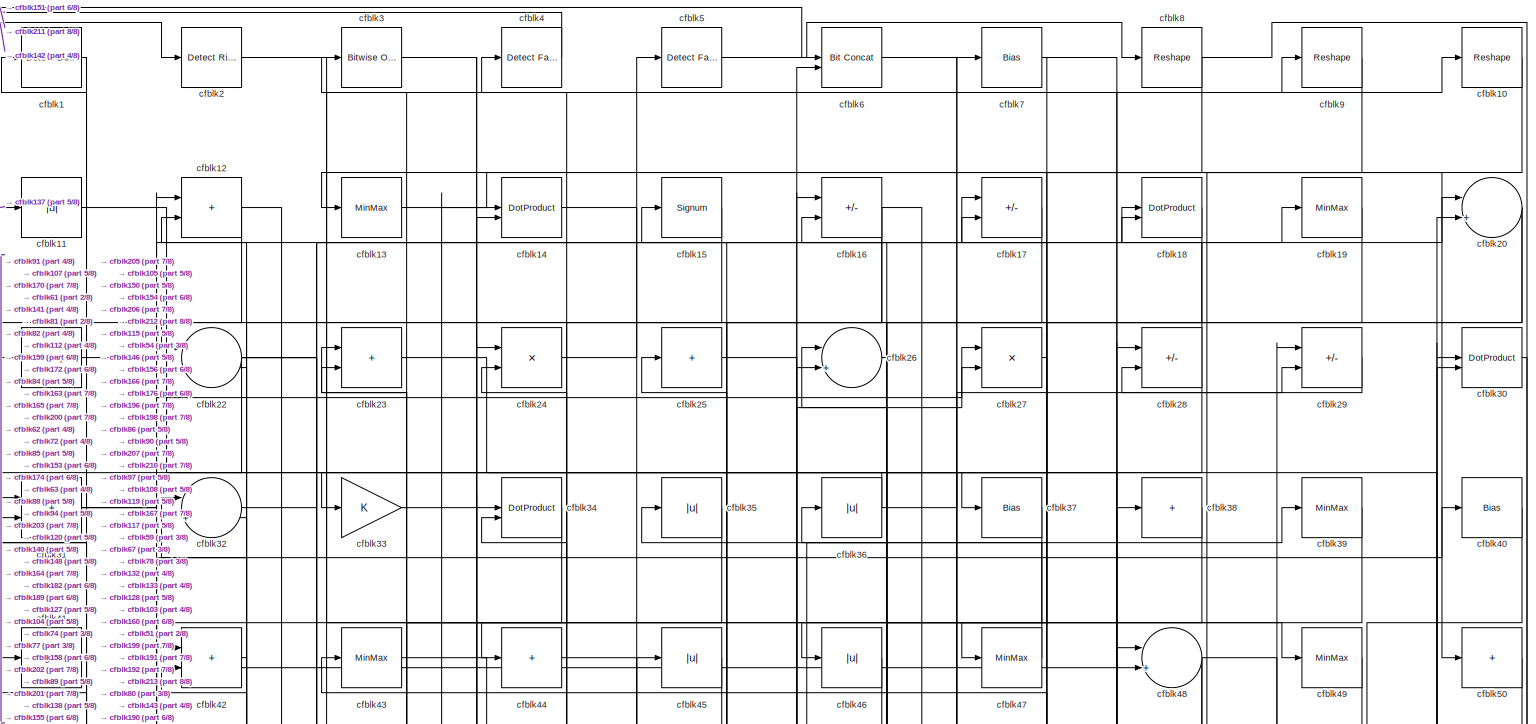
[diagram: root canvas - part 1/8, full width, top band]
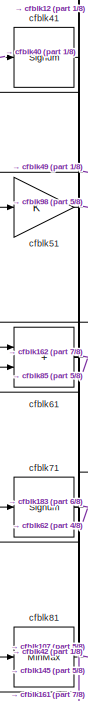
[diagram: root canvas - part 2/8, top left region]
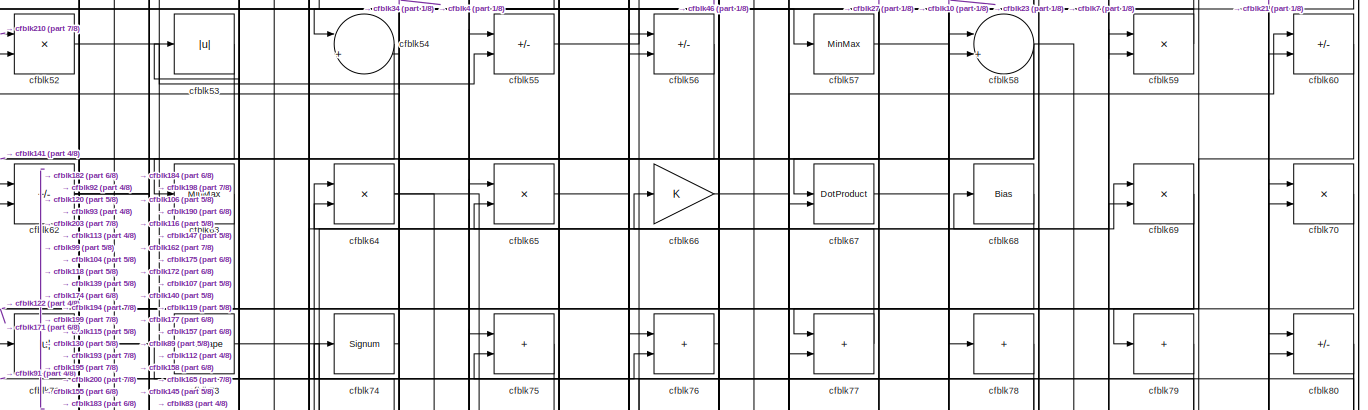
[diagram: root canvas - part 3/8, full width, top band]
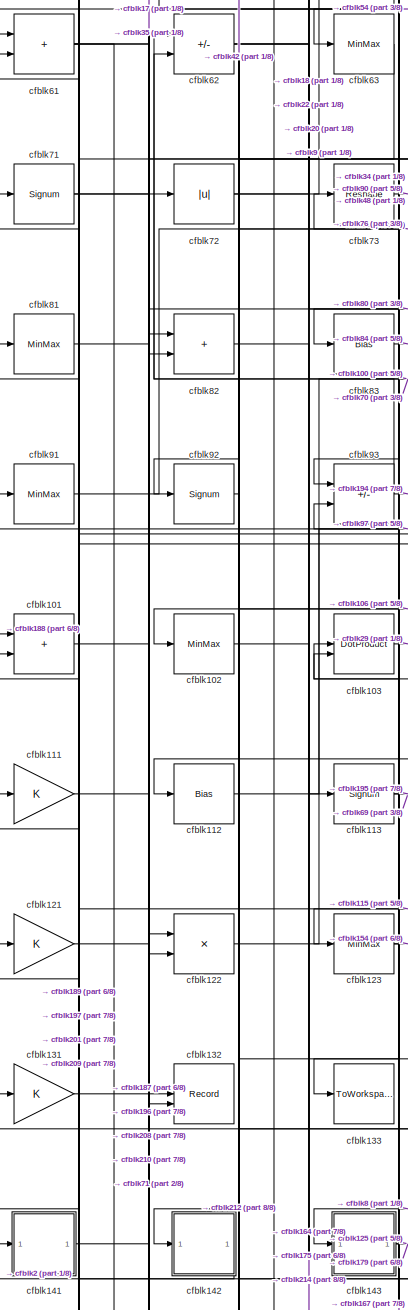
[diagram: root canvas - part 4/8, middle left region]
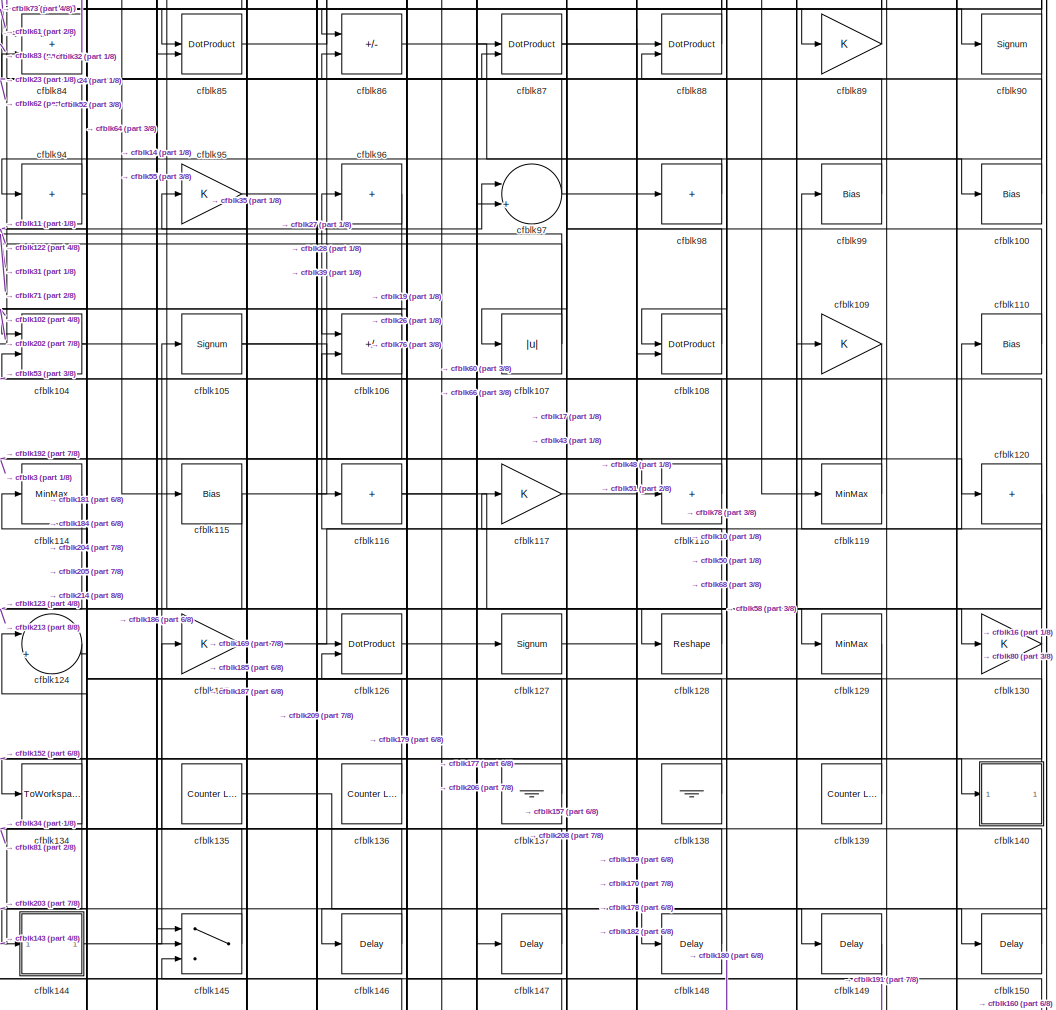
[diagram: root canvas - part 5/8, central region]
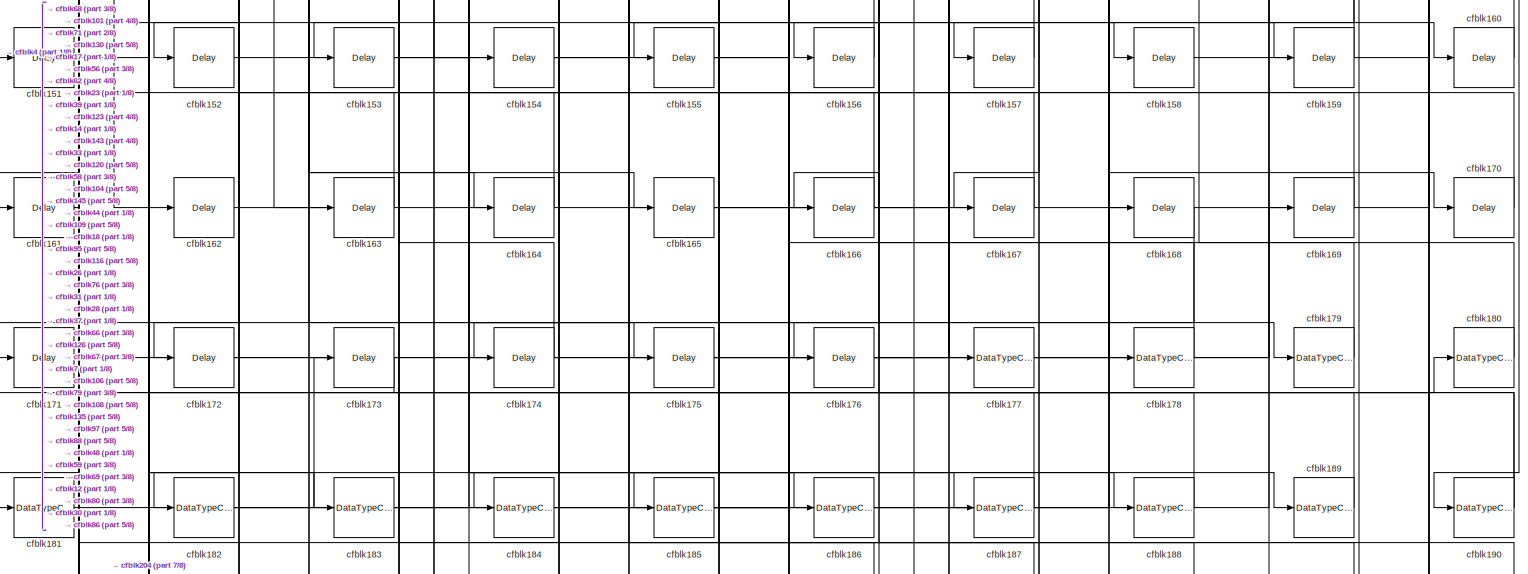
[diagram: root canvas - part 6/8, full width, bottom band]
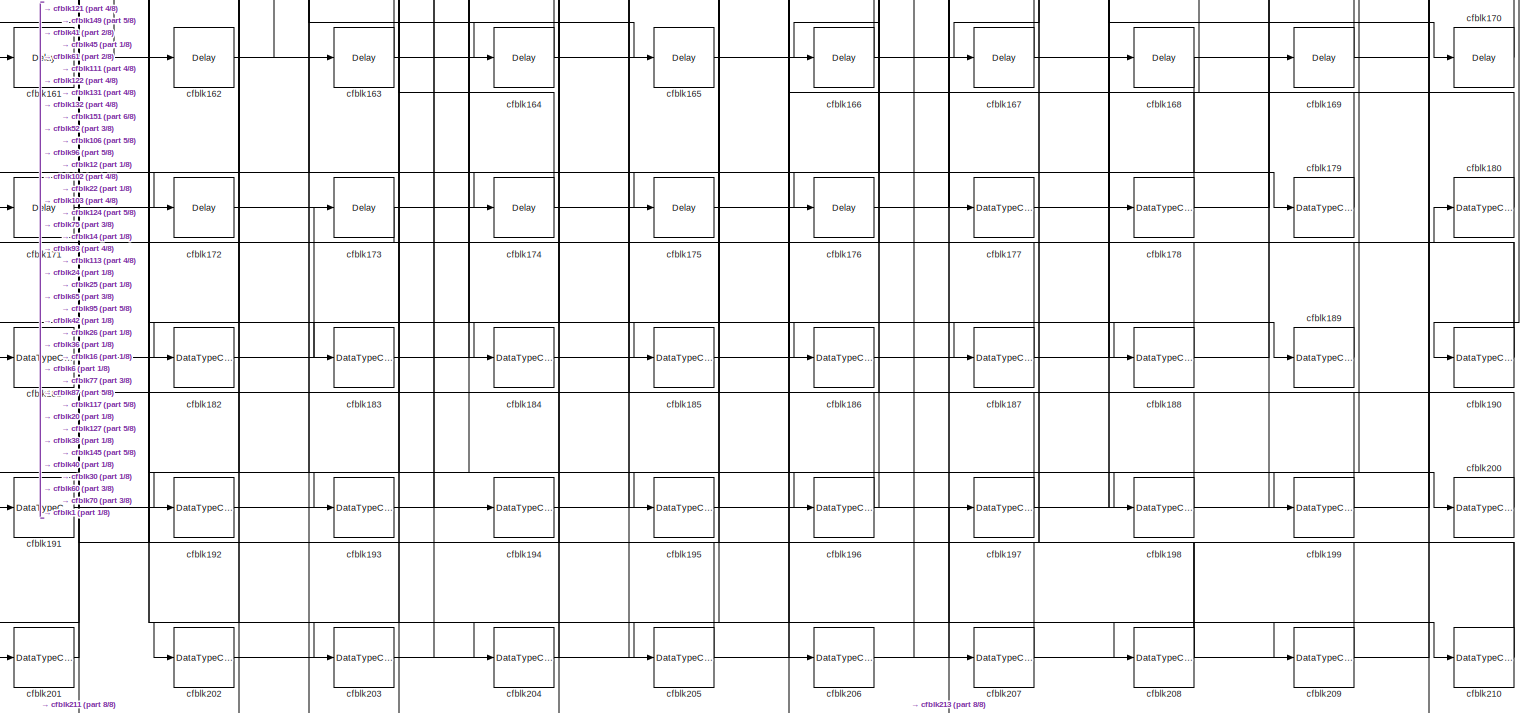
[diagram: root canvas - part 7/8, full width, bottom band]
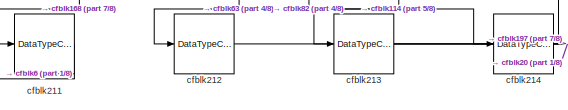
[diagram: root canvas - part 8/8, bottom left region]
MODEL slx_5a911937e55d
KIND model
CONFIG AbsTol = auto
CONFIG EnableMultiTasking = off
CONFIG FixedStep = auto
CONFIG MaxStep = auto
CONFIG MinStep = auto
CONFIG RelTol = 1e-3
CONFIG SampleTimeConstraint = Unconstrained
CONFIG SolverName = VariableStepAuto
CONFIG StartTime = 0.0
CONFIG StopTime = 10.0
BLOCK [Reference] cfblk1  REF=simulink/Logic and Bit
Operations/Detect
Decrease
  LibrarySourceBlock = hdlsllib/Logic and Bit\nOperations/Detect\nDecrease
  SourceBlock = simulink/Logic and Bit\nOperations/Detect\nDecrease
  SourceType = Detect Decrease
BLOCK [Reshape] cfblk10
BLOCK [Bias] cfblk100
  Bias = 0.0
  SaturateOnIntegerOverflow = off
BLOCK [Sum] cfblk101
  IconShape = rectangular
BLOCK [MinMax] cfblk102
BLOCK [DotProduct] cfblk103
  OutDataTypeStr = Inherit: Inherit via internal rule
BLOCK [Product] cfblk104
  Inputs = */
  RndMeth = Zero
  SaturateOnIntegerOverflow = on
BLOCK [Signum] cfblk105
BLOCK [Sum] cfblk106
  IconShape = rectangular
  Inputs = +-
BLOCK [Abs] cfblk107
  SaturateOnIntegerOverflow = off
BLOCK [DotProduct] cfblk108
  OutDataTypeStr = Inherit: Inherit via internal rule
BLOCK [Gain] cfblk109
BLOCK [Abs] cfblk11
  SaturateOnIntegerOverflow = off
BLOCK [Bias] cfblk110
  Bias = 0.0
  SaturateOnIntegerOverflow = off
BLOCK [Gain] cfblk111
BLOCK [Bias] cfblk112
  Bias = 0.0
  SaturateOnIntegerOverflow = off
BLOCK [Signum] cfblk113
BLOCK [MinMax] cfblk114
BLOCK [Bias] cfblk115
  Bias = 0.0
  SaturateOnIntegerOverflow = off
BLOCK [Sum] cfblk116
  IconShape = rectangular
  Inputs = +
BLOCK [Gain] cfblk117
BLOCK [Sum] cfblk118
  IconShape = rectangular
  Inputs = +
BLOCK [MinMax] cfblk119
BLOCK [Sum] cfblk12
  IconShape = rectangular
BLOCK [Sum] cfblk120
  IconShape = rectangular
  Inputs = +
BLOCK [Gain] cfblk121
BLOCK [Product] cfblk122
  Inputs = */
  RndMeth = Zero
  SaturateOnIntegerOverflow = on
BLOCK [MinMax] cfblk123
BLOCK [Sum] cfblk124
  Inputs = |++
BLOCK [Gain] cfblk125
BLOCK [DotProduct] cfblk126
  OutDataTypeStr = Inherit: Inherit via internal rule
BLOCK [Signum] cfblk127
BLOCK [Reshape] cfblk128
BLOCK [MinMax] cfblk129
BLOCK [MinMax] cfblk13
BLOCK [Gain] cfblk130
BLOCK [Gain] cfblk131
BLOCK [Record] cfblk132
  CompatibilityTag = XY
  FileSettingsInternal = {"entries":[{"content":{"excelSettings":{"content":{},"type":"Streamout.ExcelSettings"}},"type":"Streamout.FileSettingStorage","uuid":""}],"packageUris":["http:\/\/schema.mathworks.com\/mf0\/streamout_blocks\/R2020a"],"version":"1.0"}
  Layout = [1 1]
  SignalsInternal = {"entries":[{"content":{"signals":[{"content":{"blockPath":[],"dimensions":[1],"domain":"","lineColor":"#a2142f","plots":[1],"port":1,"signalID":2166,"signalName":"XY Graph:1"},"type":"RecordBlkView.Signal","uuid":""},{"content":{"blockPath":[],"dimensions":[1],"domain":"","lineColor":"#139fff","plots":[1],"port":2,"signalID":2169,"signalName":"XY Graph:2"},"type":"RecordBlkView.Signal","uuid":""}...<+146ch>
  VisualizationBindings = {"xyplotplugin":{"info":[{"series":[{"bindingParametersList":[{"parameter":"X-Axis","signalID":2166,"signalName":"XY Graph:1"},{"parameter":"Y-Axis","signalID":2169,"signalName":"XY Graph:2"}],"seriesID":32629}],"subplotID":1}]}}
  st = -1
BLOCK [ToWorkspace] cfblk133
  MaxDataPoints = inf
  SampleTime = -1
  SaveFormat = Timeseries
  VariableName = simout
BLOCK [ToWorkspace] cfblk134
  MaxDataPoints = inf
  SampleTime = -1
  SaveFormat = Timeseries
  VariableName = simout
BLOCK [Reference] cfblk135  REF=hdlsllib/Sources/Counter
Limited
  SourceBlock = hdlsllib/Sources/Counter\nLimited
  SourceType = Counter Limited
BLOCK [Reference] cfblk136  REF=hdlsllib/Sources/Counter
Limited
  SourceBlock = hdlsllib/Sources/Counter\nLimited
  SourceType = Counter Limited
BLOCK [Ground] cfblk137
BLOCK [Ground] cfblk138
BLOCK [Reference] cfblk139  REF=hdlsllib/Sources/Counter
Limited
  SourceBlock = hdlsllib/Sources/Counter\nLimited
  SourceType = Counter Limited
BLOCK [DotProduct] cfblk14
  OutDataTypeStr = Inherit: Inherit via internal rule
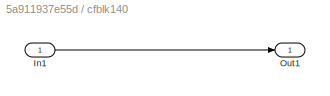
BLOCK [SubSystem] cfblk140
  LibrarySourceBlock = hdlsllib/Ports &\nSubsystems/Subsystem
BLOCK [Inport] cfblk140/In1
BLOCK [Outport] cfblk140/Out1
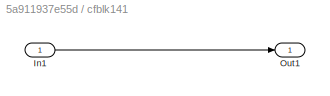
BLOCK [SubSystem] cfblk141
  LibrarySourceBlock = hdlsllib/Ports &\nSubsystems/Subsystem
BLOCK [Inport] cfblk141/In1
BLOCK [Outport] cfblk141/Out1
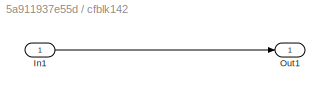
BLOCK [SubSystem] cfblk142
  LibrarySourceBlock = hdlsllib/Ports &\nSubsystems/Subsystem
BLOCK [Inport] cfblk142/In1
BLOCK [Outport] cfblk142/Out1
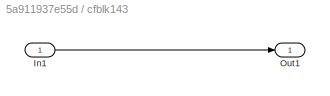
BLOCK [SubSystem] cfblk143
  LibrarySourceBlock = hdlsllib/Ports &\nSubsystems/Subsystem
BLOCK [Inport] cfblk143/In1
BLOCK [Outport] cfblk143/Out1
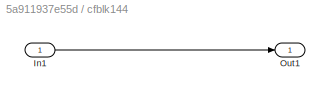
BLOCK [SubSystem] cfblk144
  LibrarySourceBlock = hdlsllib/Ports &\nSubsystems/Subsystem
BLOCK [Inport] cfblk144/In1
BLOCK [Outport] cfblk144/Out1
BLOCK [Switch] cfblk145
  InputSameDT = off
  SaturateOnIntegerOverflow = off
BLOCK [Delay] cfblk146
  InputPortMap = u0
  SampleTime = 1
BLOCK [Delay] cfblk147
  InputPortMap = u0
  SampleTime = 1
BLOCK [Delay] cfblk148
  InputPortMap = u0
  SampleTime = 1
BLOCK [Delay] cfblk149
  InputPortMap = u0
  SampleTime = 1
BLOCK [Signum] cfblk15
BLOCK [Delay] cfblk150
  InputPortMap = u0
  SampleTime = 1
BLOCK [Delay] cfblk151
  InputPortMap = u0
  SampleTime = 1
BLOCK [Delay] cfblk152
  InputPortMap = u0
  SampleTime = 1
BLOCK [Delay] cfblk153
  InputPortMap = u0
  SampleTime = 1
BLOCK [Delay] cfblk154
  InputPortMap = u0
  SampleTime = 1
BLOCK [Delay] cfblk155
  InputPortMap = u0
  SampleTime = 1
BLOCK [Delay] cfblk156
  InputPortMap = u0
  SampleTime = 1
BLOCK [Delay] cfblk157
  InputPortMap = u0
  SampleTime = 1
BLOCK [Delay] cfblk158
  InputPortMap = u0
  SampleTime = 1
BLOCK [Delay] cfblk159
  InputPortMap = u0
  SampleTime = 1
BLOCK [Sum] cfblk16
  IconShape = rectangular
  Inputs = +-
BLOCK [Delay] cfblk160
  InputPortMap = u0
  SampleTime = 1
BLOCK [Delay] cfblk161
  InputPortMap = u0
  SampleTime = 1
BLOCK [Delay] cfblk162
  InputPortMap = u0
  SampleTime = 1
BLOCK [Delay] cfblk163
  InputPortMap = u0
  SampleTime = 1
BLOCK [Delay] cfblk164
  InputPortMap = u0
  SampleTime = 1
BLOCK [Delay] cfblk165
  InputPortMap = u0
  SampleTime = 1
BLOCK [Delay] cfblk166
  InputPortMap = u0
  SampleTime = 1
BLOCK [Delay] cfblk167
  InputPortMap = u0
  SampleTime = 1
BLOCK [Delay] cfblk168
  InputPortMap = u0
  SampleTime = 1
BLOCK [Delay] cfblk169
  InputPortMap = u0
  SampleTime = 1
BLOCK [Sum] cfblk17
  IconShape = rectangular
  Inputs = +-
BLOCK [Delay] cfblk170
  InputPortMap = u0
  SampleTime = 1
BLOCK [Delay] cfblk171
  InputPortMap = u0
  SampleTime = 1
BLOCK [Delay] cfblk172
  InputPortMap = u0
  SampleTime = 1
BLOCK [Delay] cfblk173
  InputPortMap = u0
  SampleTime = 1
BLOCK [Delay] cfblk174
  InputPortMap = u0
  SampleTime = 1
BLOCK [Delay] cfblk175
  InputPortMap = u0
  SampleTime = 1
BLOCK [Delay] cfblk176
  InputPortMap = u0
  SampleTime = 1
BLOCK [DataTypeConversion] cfblk177
  OutDataTypeStr = uint8
  RndMeth = Floor
  SaturateOnIntegerOverflow = off
BLOCK [DataTypeConversion] cfblk178
  OutDataTypeStr = uint8
  RndMeth = Floor
  SaturateOnIntegerOverflow = off
BLOCK [DataTypeConversion] cfblk179
  OutDataTypeStr = uint8
  RndMeth = Floor
  SaturateOnIntegerOverflow = off
BLOCK [DotProduct] cfblk18
  OutDataTypeStr = Inherit: Inherit via internal rule
BLOCK [DataTypeConversion] cfblk180
  OutDataTypeStr = uint8
  RndMeth = Floor
  SaturateOnIntegerOverflow = off
BLOCK [DataTypeConversion] cfblk181
  OutDataTypeStr = uint8
  RndMeth = Floor
  SaturateOnIntegerOverflow = off
BLOCK [DataTypeConversion] cfblk182
  RndMeth = Floor
  SaturateOnIntegerOverflow = off
BLOCK [DataTypeConversion] cfblk183
  OutDataTypeStr = uint8
  RndMeth = Floor
  SaturateOnIntegerOverflow = off
BLOCK [DataTypeConversion] cfblk184
  OutDataTypeStr = uint8
  RndMeth = Floor
  SaturateOnIntegerOverflow = off
BLOCK [DataTypeConversion] cfblk185
  RndMeth = Floor
  SaturateOnIntegerOverflow = off
BLOCK [DataTypeConversion] cfblk186
  OutDataTypeStr = uint8
  RndMeth = Floor
  SaturateOnIntegerOverflow = off
BLOCK [DataTypeConversion] cfblk187
  OutDataTypeStr = uint8
  RndMeth = Floor
  SaturateOnIntegerOverflow = off
BLOCK [DataTypeConversion] cfblk188
  OutDataTypeStr = uint8
  RndMeth = Floor
  SaturateOnIntegerOverflow = off
BLOCK [DataTypeConversion] cfblk189
  OutDataTypeStr = uint8
  RndMeth = Floor
  SaturateOnIntegerOverflow = off
BLOCK [MinMax] cfblk19
BLOCK [DataTypeConversion] cfblk190
  RndMeth = Floor
  SaturateOnIntegerOverflow = off
BLOCK [DataTypeConversion] cfblk191
  OutDataTypeStr = uint8
  RndMeth = Floor
  SaturateOnIntegerOverflow = off
BLOCK [DataTypeConversion] cfblk192
  OutDataTypeStr = uint8
  RndMeth = Floor
  SaturateOnIntegerOverflow = off
BLOCK [DataTypeConversion] cfblk193
  RndMeth = Floor
  SaturateOnIntegerOverflow = off
BLOCK [DataTypeConversion] cfblk194
  OutDataTypeStr = uint8
  RndMeth = Floor
  SaturateOnIntegerOverflow = off
BLOCK [DataTypeConversion] cfblk195
  OutDataTypeStr = uint8
  RndMeth = Floor
  SaturateOnIntegerOverflow = off
BLOCK [DataTypeConversion] cfblk196
  RndMeth = Floor
  SaturateOnIntegerOverflow = off
BLOCK [DataTypeConversion] cfblk197
  OutDataTypeStr = uint8
  RndMeth = Floor
  SaturateOnIntegerOverflow = off
BLOCK [DataTypeConversion] cfblk198
  OutDataTypeStr = uint8
  RndMeth = Floor
  SaturateOnIntegerOverflow = off
BLOCK [DataTypeConversion] cfblk199
  OutDataTypeStr = uint8
  RndMeth = Floor
  SaturateOnIntegerOverflow = off
BLOCK [Reference] cfblk2  REF=hdlsllib/Logic and Bit
Operations/Detect Rise
Positive
  SourceBlock = hdlsllib/Logic and Bit\nOperations/Detect Rise\nPositive
  SourceType = Detect Rise Positive
BLOCK [Sum] cfblk20
  Inputs = |++
BLOCK [DataTypeConversion] cfblk200
  OutDataTypeStr = uint8
  RndMeth = Floor
  SaturateOnIntegerOverflow = off
BLOCK [DataTypeConversion] cfblk201
  OutDataTypeStr = uint8
  RndMeth = Floor
  SaturateOnIntegerOverflow = off
BLOCK [DataTypeConversion] cfblk202
  OutDataTypeStr = uint8
  RndMeth = Floor
  SaturateOnIntegerOverflow = off
BLOCK [DataTypeConversion] cfblk203
  RndMeth = Floor
  SaturateOnIntegerOverflow = off
BLOCK [DataTypeConversion] cfblk204
  OutDataTypeStr = uint8
  RndMeth = Floor
  SaturateOnIntegerOverflow = off
BLOCK [DataTypeConversion] cfblk205
  OutDataTypeStr = uint8
  RndMeth = Floor
  SaturateOnIntegerOverflow = off
BLOCK [DataTypeConversion] cfblk206
  OutDataTypeStr = uint8
  RndMeth = Floor
  SaturateOnIntegerOverflow = off
BLOCK [DataTypeConversion] cfblk207
  OutDataTypeStr = uint8
  RndMeth = Floor
  SaturateOnIntegerOverflow = off
BLOCK [DataTypeConversion] cfblk208
  RndMeth = Floor
  SaturateOnIntegerOverflow = off
BLOCK [DataTypeConversion] cfblk209
  OutDataTypeStr = uint8
  RndMeth = Floor
  SaturateOnIntegerOverflow = off
BLOCK [Reshape] cfblk21
BLOCK [DataTypeConversion] cfblk210
  RndMeth = Floor
  SaturateOnIntegerOverflow = off
BLOCK [DataTypeConversion] cfblk211
  OutDataTypeStr = uint8
  RndMeth = Floor
  SaturateOnIntegerOverflow = off
BLOCK [DataTypeConversion] cfblk212
  OutDataTypeStr = uint8
  RndMeth = Floor
  SaturateOnIntegerOverflow = off
BLOCK [DataTypeConversion] cfblk213
  RndMeth = Floor
  SaturateOnIntegerOverflow = off
BLOCK [DataTypeConversion] cfblk214
  OutDataTypeStr = uint8
  RndMeth = Floor
  SaturateOnIntegerOverflow = off
BLOCK [Sum] cfblk22
  Inputs = |++
BLOCK [Sum] cfblk23
  IconShape = rectangular
BLOCK [Product] cfblk24
  Inputs = */
  RndMeth = Zero
  SaturateOnIntegerOverflow = on
BLOCK [Sum] cfblk25
  IconShape = rectangular
  Inputs = +
BLOCK [Sum] cfblk26
  Inputs = |++
BLOCK [Product] cfblk27
  Inputs = */
  RndMeth = Zero
  SaturateOnIntegerOverflow = on
BLOCK [Sum] cfblk28
  IconShape = rectangular
  Inputs = +-
BLOCK [Sum] cfblk29
  IconShape = rectangular
  Inputs = +-
BLOCK [Reference] cfblk3  REF=simulink/Logic and Bit
Operations/Bitwise
Operator
  LibrarySourceBlock = hdlsllib/Logic and Bit\nOperations/Bitwise\nOperator
  SourceBlock = simulink/Logic and Bit\nOperations/Bitwise\nOperator
  SourceType = Bitwise Operator
BLOCK [DotProduct] cfblk30
  OutDataTypeStr = Inherit: Inherit via internal rule
BLOCK [Sum] cfblk31
  IconShape = rectangular
BLOCK [Sum] cfblk32
  Inputs = |++
BLOCK [Gain] cfblk33
BLOCK [DotProduct] cfblk34
  OutDataTypeStr = Inherit: Inherit via internal rule
BLOCK [Abs] cfblk35
  SaturateOnIntegerOverflow = off
BLOCK [Abs] cfblk36
  SaturateOnIntegerOverflow = off
BLOCK [Bias] cfblk37
  Bias = 0.0
  SaturateOnIntegerOverflow = off
BLOCK [Sum] cfblk38
  IconShape = rectangular
  Inputs = +
BLOCK [MinMax] cfblk39
BLOCK [Reference] cfblk4  REF=hdlsllib/Logic and Bit
Operations/Detect Fall
Negative
  SourceBlock = hdlsllib/Logic and Bit\nOperations/Detect Fall\nNegative
  SourceType = Detect Fall Negative
BLOCK [Bias] cfblk40
  Bias = 0.0
  SaturateOnIntegerOverflow = off
BLOCK [Signum] cfblk41
BLOCK [Sum] cfblk42
  IconShape = rectangular
BLOCK [MinMax] cfblk43
BLOCK [Sum] cfblk44
  IconShape = rectangular
  Inputs = +
BLOCK [Abs] cfblk45
  SaturateOnIntegerOverflow = off
BLOCK [Abs] cfblk46
  SaturateOnIntegerOverflow = off
BLOCK [MinMax] cfblk47
BLOCK [Sum] cfblk48
  Inputs = |++
BLOCK [MinMax] cfblk49
BLOCK [Reference] cfblk5  REF=hdlsllib/Logic and Bit
Operations/Detect Fall
Nonpositive
  SourceBlock = hdlsllib/Logic and Bit\nOperations/Detect Fall\nNonpositive
  SourceType = Detect Fall Nonpositive
BLOCK [Sum] cfblk50
  IconShape = rectangular
  Inputs = +
BLOCK [Gain] cfblk51
BLOCK [Product] cfblk52
  Inputs = */
  RndMeth = Zero
  SaturateOnIntegerOverflow = on
BLOCK [Abs] cfblk53
  SaturateOnIntegerOverflow = off
BLOCK [Sum] cfblk54
  Inputs = |++
BLOCK [Sum] cfblk55
  IconShape = rectangular
  Inputs = +-
BLOCK [Sum] cfblk56
  IconShape = rectangular
  Inputs = +-
BLOCK [MinMax] cfblk57
BLOCK [Sum] cfblk58
  Inputs = |++
BLOCK [Product] cfblk59
  Inputs = */
  RndMeth = Zero
  SaturateOnIntegerOverflow = on
BLOCK [Reference] cfblk6  REF=hdlsllib/Logic and Bit
Operations/Bit Concat
  SourceBlock = hdlsllib/Logic and Bit\nOperations/Bit Concat
  SourceType = Bit Concat
BLOCK [Sum] cfblk60
  IconShape = rectangular
  Inputs = +-
BLOCK [Sum] cfblk61
  IconShape = rectangular
BLOCK [Sum] cfblk62
  IconShape = rectangular
  Inputs = +-
BLOCK [MinMax] cfblk63
BLOCK [Product] cfblk64
  Inputs = */
  RndMeth = Zero
  SaturateOnIntegerOverflow = on
BLOCK [Product] cfblk65
  Inputs = */
  RndMeth = Zero
  SaturateOnIntegerOverflow = on
BLOCK [Gain] cfblk66
BLOCK [DotProduct] cfblk67
  OutDataTypeStr = Inherit: Inherit via internal rule
BLOCK [Bias] cfblk68
  Bias = 0.0
  SaturateOnIntegerOverflow = off
BLOCK [Product] cfblk69
  Inputs = */
  RndMeth = Zero
  SaturateOnIntegerOverflow = on
BLOCK [Bias] cfblk7
  Bias = 0.0
  SaturateOnIntegerOverflow = off
BLOCK [Product] cfblk70
  Inputs = */
  RndMeth = Zero
  SaturateOnIntegerOverflow = on
BLOCK [Signum] cfblk71
BLOCK [Abs] cfblk72
  SaturateOnIntegerOverflow = off
BLOCK [Reshape] cfblk73
BLOCK [Signum] cfblk74
BLOCK [Sum] cfblk75
  IconShape = rectangular
BLOCK [Sum] cfblk76
  IconShape = rectangular
BLOCK [Sum] cfblk77
  IconShape = rectangular
BLOCK [Sum] cfblk78
  IconShape = rectangular
  Inputs = +
BLOCK [Sum] cfblk79
  IconShape = rectangular
  Inputs = +
BLOCK [Reshape] cfblk8
BLOCK [Sum] cfblk80
  IconShape = rectangular
  Inputs = +-
BLOCK [MinMax] cfblk81
BLOCK [Sum] cfblk82
  IconShape = rectangular
BLOCK [Bias] cfblk83
  Bias = 0.0
  SaturateOnIntegerOverflow = off
BLOCK [Sum] cfblk84
  IconShape = rectangular
BLOCK [DotProduct] cfblk85
  OutDataTypeStr = Inherit: Inherit via internal rule
BLOCK [Sum] cfblk86
  IconShape = rectangular
  Inputs = +-
BLOCK [DotProduct] cfblk87
  OutDataTypeStr = Inherit: Inherit via internal rule
BLOCK [DotProduct] cfblk88
  OutDataTypeStr = Inherit: Inherit via internal rule
BLOCK [Gain] cfblk89
BLOCK [Reshape] cfblk9
BLOCK [Signum] cfblk90
BLOCK [MinMax] cfblk91
BLOCK [Signum] cfblk92
BLOCK [Sum] cfblk93
  IconShape = rectangular
  Inputs = +-
BLOCK [Sum] cfblk94
  IconShape = rectangular
  Inputs = +
BLOCK [Gain] cfblk95
BLOCK [Sum] cfblk96
  IconShape = rectangular
  Inputs = +
BLOCK [Sum] cfblk97
  Inputs = |++
BLOCK [Sum] cfblk98
  IconShape = rectangular
  Inputs = +
BLOCK [Bias] cfblk99
  Bias = 0.0
  SaturateOnIntegerOverflow = off
LINE cfblk100:1 -> cfblk62:1
LINE cfblk101:1 -> cfblk187:1
LINE cfblk102:1 -> cfblk164:1
LINE cfblk103:1 -> cfblk29:1
NET cfblk104:1 -> cfblk186:1, cfblk24:2
NET cfblk105:1 -> cfblk118:1, cfblk27:2
NET cfblk106:1 -> cfblk102:1, cfblk192:1
NET cfblk107:1 -> cfblk31:1, cfblk71:1
LINE cfblk108:1 -> cfblk43:1
LINE cfblk109:1 -> cfblk185:1
LINE cfblk10:1 -> cfblk128:1
LINE cfblk110:1 -> cfblk84:2
LINE cfblk111:1 -> cfblk208:1
LINE cfblk112:1 -> cfblk70:1
NET cfblk113:1 -> cfblk195:1, cfblk69:1
LINE cfblk114:1 -> cfblk213:1
NET cfblk115:1 -> cfblk123:1, cfblk39:1
NET cfblk116:1 -> cfblk129:1, cfblk60:1
LINE cfblk117:1 -> cfblk48:1
LINE cfblk118:1 -> cfblk64:2
LINE cfblk119:1 -> cfblk17:2
LINE cfblk11:1 -> cfblk97:2
NET cfblk120:1 -> cfblk181:1, cfblk184:1, cfblk53:1
LINE cfblk121:1 -> cfblk82:1
LINE cfblk122:1 -> cfblk97:1
NET cfblk123:1 -> cfblk103:1, cfblk154:1
LINE cfblk124:1 -> cfblk203:1
LINE cfblk125:1 -> cfblk110:1
LINE cfblk126:1 -> cfblk177:1
LINE cfblk127:1 -> cfblk170:1
LINE cfblk128:1 -> cfblk96:1
LINE cfblk129:1 -> cfblk134:1
NET cfblk12:1 -> cfblk163:1, cfblk61:1
NET cfblk130:1 -> cfblk152:1, cfblk99:1
LINE cfblk131:1 -> cfblk196:1
LINE cfblk135:1 -> cfblk178:1
LINE cfblk136:1 -> cfblk104:2
LINE cfblk137:1 -> cfblk11:1
LINE cfblk138:1 -> cfblk35:1
LINE cfblk139:1 -> cfblk52:2
LINE cfblk13:1 -> cfblk50:1
LINE cfblk140/In1:1 -> cfblk140/Out1:1
LINE cfblk140:1 -> cfblk68:1
LINE cfblk141/In1:1 -> cfblk141/Out1:1
LINE cfblk141:1 -> cfblk17:1
LINE cfblk142/In1:1 -> cfblk142/Out1:1
LINE cfblk142:1 -> cfblk2:1
LINE cfblk143/In1:1 -> cfblk143/Out1:1
NET cfblk143:1 -> cfblk125:1, cfblk179:1
LINE cfblk144/In1:1 -> cfblk144/Out1:1
LINE cfblk144:1 -> cfblk105:1
LINE cfblk145:1 -> cfblk81:1
LINE cfblk146:1 -> cfblk32:1
LINE cfblk147:1 -> cfblk55:1
LINE cfblk148:1 -> cfblk34:1
LINE cfblk149:1 -> cfblk191:1
LINE cfblk14:1 -> cfblk89:1
LINE cfblk150:1 -> cfblk16:1
LINE cfblk151:1 -> cfblk204:1
LINE cfblk152:1 -> cfblk145:1
LINE cfblk153:1 -> cfblk188:1
LINE cfblk154:1 -> cfblk26:2
LINE cfblk155:1 -> cfblk76:1
LINE cfblk156:1 -> cfblk31:2
LINE cfblk157:1 -> cfblk106:2
LINE cfblk158:1 -> cfblk80:2
LINE cfblk159:1 -> cfblk12:2
LINE cfblk15:1 -> cfblk22:1
LINE cfblk160:1 -> cfblk86:2
LINE cfblk161:1 -> cfblk61:2
LINE cfblk162:1 -> cfblk77:2
LINE cfblk163:1 -> cfblk22:2
LINE cfblk164:1 -> cfblk24:1
LINE cfblk165:1 -> cfblk70:2
LINE cfblk166:1 -> cfblk42:2
LINE cfblk167:1 -> cfblk93:2
LINE cfblk168:1 -> cfblk211:1
LINE cfblk169:1 -> cfblk145:3
NET cfblk16:1 -> cfblk205:1, cfblk207:1, cfblk44:1
LINE cfblk170:1 -> cfblk1:1
LINE cfblk171:1 -> cfblk69:2
LINE cfblk172:1 -> cfblk58:1
LINE cfblk173:1 -> cfblk180:1
LINE cfblk174:1 -> cfblk23:2
LINE cfblk175:1 -> cfblk67:2
LINE cfblk176:1 -> cfblk7:1
LINE cfblk177:1 -> cfblk59:1
LINE cfblk178:1 -> cfblk126:1
LINE cfblk179:1 -> cfblk126:2
LINE cfblk17:1 -> cfblk172:1
LINE cfblk180:1 -> cfblk88:2
LINE cfblk181:1 -> cfblk173:1
NET cfblk182:1 -> cfblk108:2, cfblk14:2
LINE cfblk183:1 -> cfblk56:1
LINE cfblk184:1 -> cfblk56:2
NET cfblk185:1 -> cfblk116:1, cfblk88:1
LINE cfblk186:1 -> cfblk109:1
LINE cfblk187:1 -> cfblk95:1
LINE cfblk188:1 -> cfblk101:1
LINE cfblk189:1 -> cfblk101:2
LINE cfblk18:1 -> cfblk155:1
NET cfblk190:1 -> cfblk12:1, cfblk66:1
LINE cfblk191:1 -> cfblk30:1
LINE cfblk192:1 -> cfblk30:2
NET cfblk193:1 -> cfblk168:1, cfblk169:1
LINE cfblk194:1 -> cfblk75:1
LINE cfblk195:1 -> cfblk75:2
NET cfblk196:1 -> cfblk103:2, cfblk26:1, cfblk38:1
LINE cfblk197:1 -> cfblk131:1
LINE cfblk198:1 -> cfblk36:1
LINE cfblk199:1 -> cfblk65:1
LINE cfblk19:1 -> cfblk146:1
LINE cfblk1:1 -> cfblk21:1
LINE cfblk200:1 -> cfblk65:2
LINE cfblk201:1 -> cfblk121:1
LINE cfblk202:1 -> cfblk45:1
NET cfblk203:1 -> cfblk14:1, cfblk60:2
LINE cfblk204:1 -> cfblk124:1
LINE cfblk205:1 -> cfblk124:2
LINE cfblk206:1 -> cfblk87:1
LINE cfblk207:1 -> cfblk25:1
NET cfblk208:1 -> cfblk117:1, cfblk122:1, cfblk87:2
LINE cfblk209:1 -> cfblk111:1
NET cfblk20:1 -> cfblk166:1, cfblk167:1
NET cfblk210:1 -> cfblk132:1, cfblk52:1
LINE cfblk211:1 -> cfblk6:1
LINE cfblk212:1 -> cfblk6:2
NET cfblk213:1 -> cfblk197:1, cfblk20:2
LINE cfblk214:1 -> cfblk114:1
LINE cfblk21:1 -> cfblk80:1
NET cfblk22:1 -> cfblk165:1, cfblk200:1, cfblk85:1, cfblk91:1
LINE cfblk23:1 -> cfblk78:1
LINE cfblk24:1 -> cfblk5:1
LINE cfblk25:1 -> cfblk206:1
LINE cfblk26:1 -> cfblk86:1
LINE cfblk27:1 -> cfblk67:1
NET cfblk28:1 -> cfblk156:1, cfblk18:1
LINE cfblk29:1 -> cfblk28:2
LINE cfblk2:1 -> cfblk49:1
LINE cfblk30:1 -> cfblk190:1
NET cfblk31:1 -> cfblk27:1, cfblk48:2
LINE cfblk32:1 -> cfblk19:1
LINE cfblk33:1 -> cfblk189:1
LINE cfblk34:1 -> cfblk63:1
LINE cfblk35:1 -> cfblk82:2
NET cfblk36:1 -> cfblk29:2, cfblk33:1
LINE cfblk37:1 -> cfblk176:1
LINE cfblk38:1 -> cfblk46:1
LINE cfblk39:1 -> cfblk153:1
NET cfblk3:1 -> cfblk120:1, cfblk140:1
LINE cfblk40:1 -> cfblk199:1
LINE cfblk41:1 -> cfblk161:1
LINE cfblk42:1 -> cfblk112:1
LINE cfblk43:1 -> cfblk127:1
LINE cfblk44:1 -> cfblk158:1
LINE cfblk45:1 -> cfblk201:1
LINE cfblk46:1 -> cfblk54:2
LINE cfblk47:1 -> cfblk15:1
NET cfblk48:1 -> cfblk132:2, cfblk133:1, cfblk160:1
LINE cfblk49:1 -> cfblk51:1
LINE cfblk4:1 -> cfblk151:1
LINE cfblk50:1 -> cfblk108:1
LINE cfblk51:1 -> cfblk98:1
LINE cfblk52:1 -> cfblk55:2
LINE cfblk53:1 -> cfblk141:1
LINE cfblk54:1 -> cfblk93:1
LINE cfblk55:1 -> cfblk57:1
LINE cfblk56:1 -> cfblk182:1
LINE cfblk57:1 -> cfblk58:2
NET cfblk58:1 -> cfblk104:1, cfblk119:1, cfblk174:1
LINE cfblk59:1 -> cfblk54:1
LINE cfblk5:1 -> cfblk8:1
LINE cfblk60:1 -> cfblk79:1
NET cfblk61:1 -> cfblk162:1, cfblk40:1, cfblk41:1, cfblk85:2
NET cfblk62:1 -> cfblk113:1, cfblk175:1, cfblk18:2
LINE cfblk63:1 -> cfblk212:1
NET cfblk64:1 -> cfblk115:1, cfblk130:1
LINE cfblk65:1 -> cfblk198:1
LINE cfblk66:1 -> cfblk147:1
LINE cfblk67:1 -> cfblk10:1
LINE cfblk68:1 -> cfblk171:1
NET cfblk69:1 -> cfblk122:2, cfblk77:1
LINE cfblk6:1 -> cfblk210:1
LINE cfblk70:1 -> cfblk92:1
NET cfblk71:1 -> cfblk183:1, cfblk62:2
NET cfblk72:1 -> cfblk20:1, cfblk9:1
LINE cfblk73:1 -> cfblk90:1
LINE cfblk74:1 -> cfblk4:1
LINE cfblk75:1 -> cfblk193:1
LINE cfblk76:1 -> cfblk106:1
LINE cfblk77:1 -> cfblk34:2
LINE cfblk78:1 -> cfblk107:1
LINE cfblk79:1 -> cfblk157:1
NET cfblk7:1 -> cfblk37:1, cfblk59:2
NET cfblk80:1 -> cfblk145:2, cfblk83:1
LINE cfblk81:1 -> cfblk42:1
LINE cfblk82:1 -> cfblk214:1
LINE cfblk83:1 -> cfblk84:1
LINE cfblk84:1 -> cfblk32:2
LINE cfblk85:1 -> cfblk28:1
LINE cfblk86:1 -> cfblk100:1
NET cfblk87:1 -> cfblk149:1, cfblk150:1
LINE cfblk88:1 -> cfblk3:1
LINE cfblk89:1 -> cfblk64:1
NET cfblk8:1 -> cfblk13:1, cfblk143:1
NET cfblk90:1 -> cfblk148:1, cfblk16:2
LINE cfblk91:1 -> cfblk76:2
LINE cfblk92:1 -> cfblk142:1
NET cfblk93:1 -> cfblk194:1, cfblk72:1
NET cfblk94:1 -> cfblk144:1, cfblk23:1
LINE cfblk95:1 -> cfblk209:1
LINE cfblk96:1 -> cfblk202:1
NET cfblk97:1 -> cfblk159:1, cfblk73:1
LINE cfblk98:1 -> cfblk94:1
LINE cfblk99:1 -> cfblk74:1
LINE cfblk9:1 -> cfblk47:1
note: NET lines group one-source signal fan-out (src -> all destinations, sorted); 1:1 wires keep LINE
